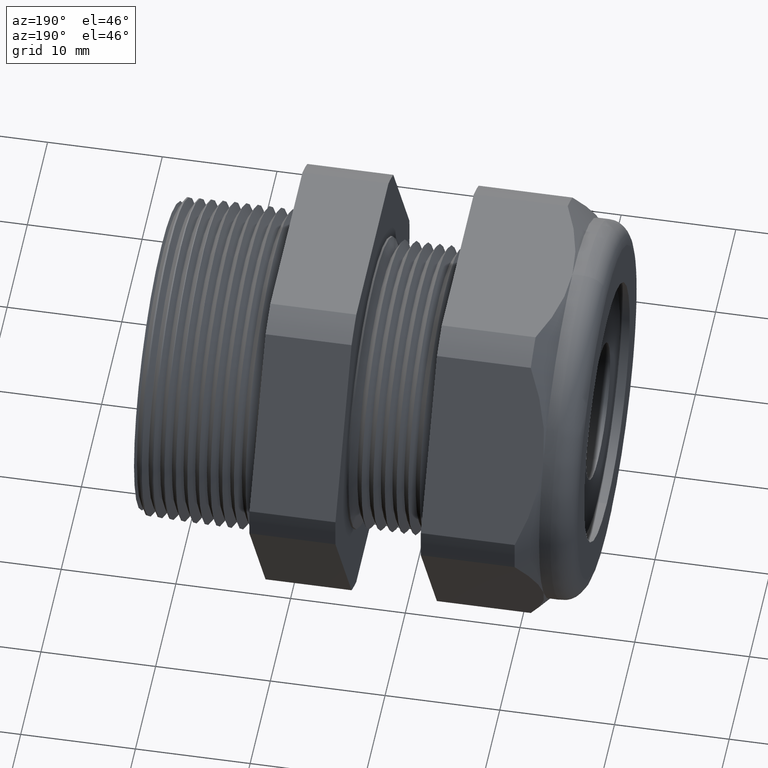
[diagram: clean part render]
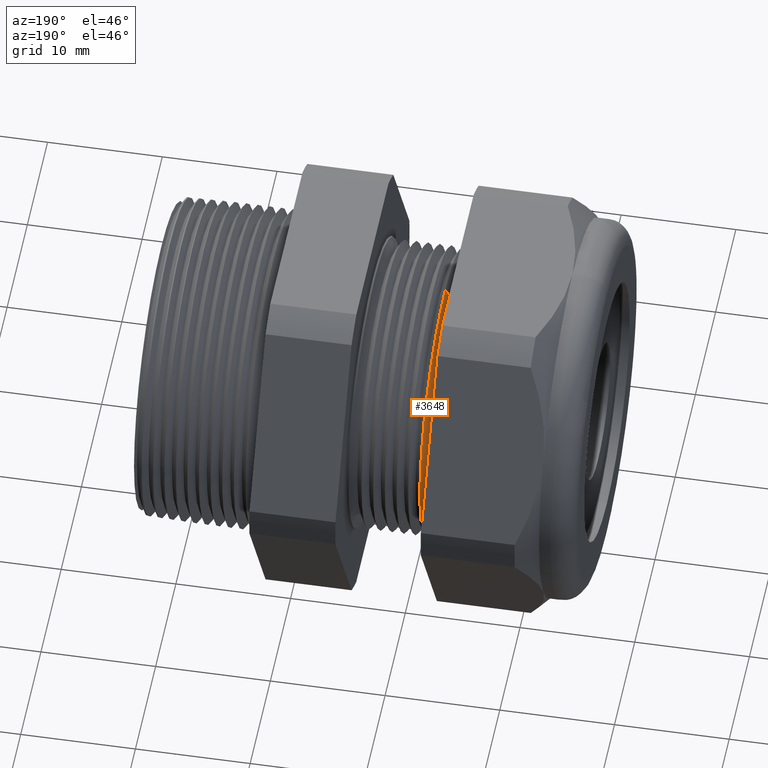
[diagram: same view with one face highlighted and labeled with its STEP entity id]
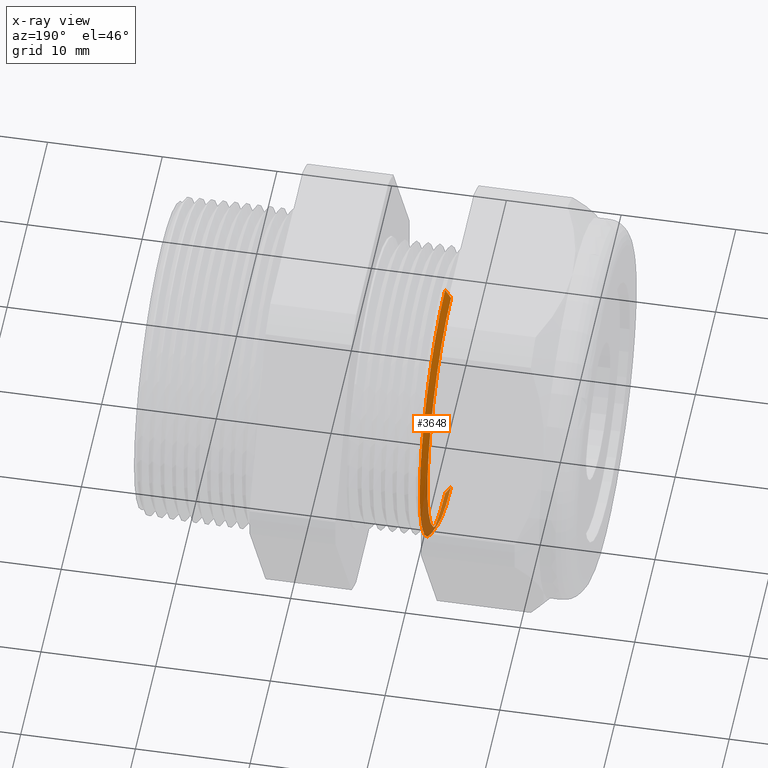
[diagram: x-ray of the same camera — body ghosted, the highlighted face saturated]
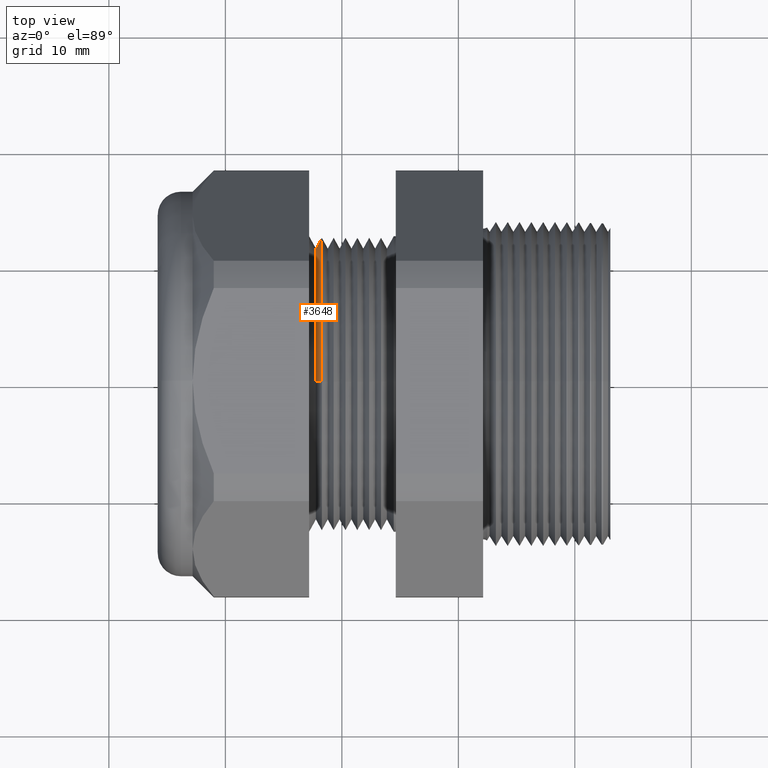
[diagram: same view with one face highlighted and labeled with its STEP entity id]
A machine part, auxiliary view. The second image highlights one B-rep face of the part: STEP entity #3648.
The next image is the same camera in x-ray: the body ghosted, the highlighted face saturated — about 21% of this face is hidden behind the body in this view.
A second angle (top view) of the same face is appended — the face is thin or edge-on in the first view.
In plain terms, the highlighted conical surface has half-angle 60 deg.
Its self-contained STEP definition (entity closure, byte-faithful):
#1 = VERTEX_POINT ( 'NONE', #118 ) ;
#5 = EDGE_CURVE ( 'NONE', #1, #7, #1217, .T. ) ;
#7 = VERTEX_POINT ( 'NONE', #1212 ) ;
#48 = ORIENTED_EDGE ( 'NONE', *, *, #107, .T. ) ;
#74 = EDGE_CURVE ( 'NONE', #108, #7, #1337, .T. ) ;
#95 = VERTEX_POINT ( 'NONE', #1375 ) ;
#98 = EDGE_CURVE ( 'NONE', #95, #1, #1369, .T. ) ;
#99 = ORIENTED_EDGE ( 'NONE', *, *, #98, .T. ) ;
#100 = ORIENTED_EDGE ( 'NONE', *, *, #74, .F. ) ;
#105 = ORIENTED_EDGE ( 'NONE', *, *, #5, .T. ) ;
#107 = EDGE_CURVE ( 'NONE', #108, #95, #1412, .T. ) ;
#108 = VERTEX_POINT ( 'NONE', #1407 ) ;
#118 = CARTESIAN_POINT ( 'NONE',  ( -0.8550949656103676900, 6.051482137572053200E-017, 0.4941410161513777300 ) ) ;
#226 = DIRECTION ( 'NONE',  ( 0.0000000000000000000, 0.0000000000000000000, -1.000000000000000000 ) ) ;
#227 = DIRECTION ( 'NONE',  ( 1.000000000000000000, 0.0000000000000000000, 0.0000000000000000000 ) ) ;
#228 = CARTESIAN_POINT ( 'NONE',  ( -0.8750949656103679300, 0.0000000000000000000, 0.0000000000000000000 ) ) ;
#229 = AXIS2_PLACEMENT_3D ( 'NONE', #228, #227, #226 ) ;
#230 = CONICAL_SURFACE ( 'NONE', #229, 0.4595000000000000200, 1.047197551196595000 ) ;
#231 = FACE_OUTER_BOUND ( 'NONE', #3659, .T. ) ;
#1212 = CARTESIAN_POINT ( 'NONE',  ( -0.8550949656103676900, 0.0000000000000000000, -0.4941410161513777300 ) ) ;
#1213 = DIRECTION ( 'NONE',  ( 0.0000000000000000000, 0.0000000000000000000, 1.000000000000000000 ) ) ;
#1214 = DIRECTION ( 'NONE',  ( -1.000000000000000000, 0.0000000000000000000, 0.0000000000000000000 ) ) ;
#1215 = CARTESIAN_POINT ( 'NONE',  ( -0.8550949656103676900, 0.0000000000000000000, 0.0000000000000000000 ) ) ;
#1216 = AXIS2_PLACEMENT_3D ( 'NONE', #1215, #1214, #1213 ) ;
#1217 = CIRCLE ( 'NONE', #1216, 0.4941410161513776800 ) ;
#1334 = DIRECTION ( 'NONE',  ( 0.5000000000000023300, 0.0000000000000000000, -0.8660254037844371500 ) ) ;
#1335 = VECTOR ( 'NONE', #1334, 39.37007874015748900 ) ;
#1336 = CARTESIAN_POINT ( 'NONE',  ( -0.8750949656103679300, 0.0000000000000000000, -0.4595000000000000200 ) ) ;
#1337 = LINE ( 'NONE', #1336, #1335 ) ;
#1366 = DIRECTION ( 'NONE',  ( 0.5000000000000023300, 1.060575238724905100E-016, 0.8660254037844371500 ) ) ;
#1367 = VECTOR ( 'NONE', #1366, 39.37007874015748900 ) ;
#1368 = CARTESIAN_POINT ( 'NONE',  ( -0.8750949656103679300, 5.627252042082088500E-017, 0.4595000000000000200 ) ) ;
#1369 = LINE ( 'NONE', #1368, #1367 ) ;
#1375 = CARTESIAN_POINT ( 'NONE',  ( -0.8750949656103679300, 0.0000000000000000000, 0.4595000000000000200 ) ) ;
#1407 = CARTESIAN_POINT ( 'NONE',  ( -0.8750949656103679300, 5.872181401911558600E-017, -0.4595000000000000200 ) ) ;
#1408 = DIRECTION ( 'NONE',  ( 0.0000000000000000000, 0.0000000000000000000, -1.000000000000000000 ) ) ;
#1409 = DIRECTION ( 'NONE',  ( 1.000000000000000000, 0.0000000000000000000, 0.0000000000000000000 ) ) ;
#1410 = CARTESIAN_POINT ( 'NONE',  ( -0.8750949656103679300, 0.0000000000000000000, 0.0000000000000000000 ) ) ;
#1411 = AXIS2_PLACEMENT_3D ( 'NONE', #1410, #1409, #1408 ) ;
#1412 = CIRCLE ( 'NONE', #1411, 0.4595000000000000200 ) ;
#3648 = ADVANCED_FACE ( 'NONE', ( #231 ), #230, .T. ) ;
#3659 = EDGE_LOOP ( 'NONE', ( #48, #99, #105, #100 ) ) ;